MODEL gtkWave
KIND library
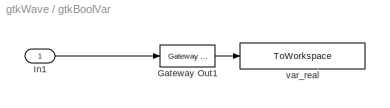
BLOCK [SubSystem] gtkBoolVar
  FunctionWithSeparateData = off
  MaskDescription = Capture a Boolean signal to view in gtkWave.
  MaskDisplay = disp('gtkBool')
  MaskHideContents = off
  MaskIconFrame = on
  MaskIconOpaque = on
  MaskIconRotate = none
  MaskIconUnits = autoscale
  MaskInitialization = gtkBool_init
  MaskSelfModifiable = on
  MinAlgLoopOccurrences = off
  Opaque = off
  Ports = [1]
  PropExecContextOutsideSubsystem = off
  RTWSystemCode = Auto
  RequestExecContextInheritance = off
BLOCK [Reference] gtkBoolVar/Gateway Out1  REF=xbsIndex_r4/Gateway Out
  LOCs = {}
  Ports = [1, 1]
  SourceBlock = xbsIndex_r4/Gateway Out
  SourceType = Xilinx Gateway Out Block
  block_type = gatewayout
  block_version = 10.1.2
  has_advanced_control = 0
  hdl_port = off
  infoedit = Gateway out block.  Converts Xilinx fixed point inputs into ouputs of type Simulink integer, double, or fixed point.<P><P>Hardware notes:  In hardware these blocks become top level output ports or are discarded, depending on how they are configured.  <repeated x3 — deduplicated; at blocks: Gateway Out1, Gateway Out2>
  locs_specified = off
  sg_icon_stat = 55,22,1,1,white,grey,0,b3a044a9,right
  sg_mask_display = fprintf('','COMMENT: begin icon graphics');\npatch([0 55 55 0 ],[0 0 22 22 ],[0.88 0.88 0.88]);\npatch([22 18 23 18 22 28 30 32 38 33 28 25 31 25 28 33 38 32 30 28 22 ],[2 6 11 16 20 20 18 20 20 15 20 17 11 5 2 7 2 2 4 2 2 ],[0.98 0.96 0.92]);\nplot([0 55 55 0 0 ],[0 0 22 22 0 ]);\nfprintf('','COMMENT: end icon graphics');\nfprintf('','COMMENT: begin icon text');\ncolor('black');port_label('input'...<+128ch>  <repeated x3 — deduplicated; at blocks: Gateway Out1, Gateway Out2>
  sggui_pos = -1,-1,-1,-1
  timing_constraint = None
  xl_area = [0, 0, 0, 0, 0, 0, 0]
  xl_use_area = off
BLOCK [Inport] gtkBoolVar/In1
  IconDisplay = Port number
  OutDataType = sfix(16)
  OutScaling = 2^0
BLOCK [ToWorkspace] gtkBoolVar/var_real
  MaxDataPoints = inf
  SampleTime = -1
  SaveFormat = Structure With Time
  VariableName = gtk_gtkWave__gtkBoolVar_bool
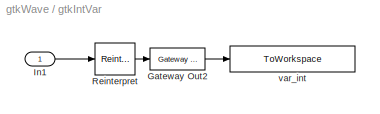
BLOCK [SubSystem] gtkIntVar
  FunctionWithSeparateData = off
  MaskDescription = Capture an Integer signal to view in gtkWave.\ngtkWave does not support fixed point variables, so all integers will appear with binary point at 0.\nThe input signal to this block should be less than 50 bits wide, as it is represented in Matlab as a double.
  MaskDisplay = disp(['gtkFix',num2str(width)])
  MaskEnableString = on
  MaskHideContents = off
  MaskIconFrame = on
  MaskIconOpaque = on
  MaskIconRotate = none
  MaskIconUnits = autoscale
  MaskInitialization = gtkFix_init
  MaskPromptString = Bit Width
  MaskSelfModifiable = on
  MaskStyleString = edit
  MaskToolTipString = on
  MaskTunableValueString = on
  MaskValueString = 32
  MaskVariables = width=@1;
  MaskVisibilityString = on
  MinAlgLoopOccurrences = off
  Opaque = off
  Ports = [1]
  PropExecContextOutsideSubsystem = off
  RTWSystemCode = Auto
  RequestExecContextInheritance = off
BLOCK [Reference] gtkIntVar/Gateway Out2  REF=xbsIndex_r4/Gateway Out
  LOCs = {}
  Ports = [1, 1]
  SourceBlock = xbsIndex_r4/Gateway Out
  SourceType = Xilinx Gateway Out Block
  block_type = gatewayout
  block_version = 10.1.2
  has_advanced_control = 0
  hdl_port = off
  locs_specified = off
  sg_icon_stat = 55,22,1,1,white,grey,0,b3a044a9,right
  sggui_pos = -1,-1,-1,-1
  timing_constraint = None
  xl_area = [0, 0, 0, 0, 0, 0, 0]
  xl_use_area = off
BLOCK [Inport] gtkIntVar/In1
  IconDisplay = Port number
  OutDataType = sfix(16)
  OutScaling = 2^0
BLOCK [Reference] gtkIntVar/Reinterpret  REF=xbsIndex_r4/Reinterpret
  Ports = [1, 1]
  SourceBlock = xbsIndex_r4/Reinterpret
  SourceType = Xilinx Type Reinterpreter Block
  arith_type = Unsigned
  bin_pt = 0
  block_type = reinterpret
  block_version = 10.1.2
  force_arith_type = on
  force_bin_pt = on
  has_advanced_control = 0
  infoedit = Changes signal type without altering the binary representation.   You can changed the signal between signed and unsigned, and relocate the binary point.<P><P>Hardware notes: In hardware this block costs nothing.<P><P>Example:  Suppose the input is 6 bits wide, signed, with 2 fractional bits, and the output is forced to unsigned with 0 fractional bits.  Then an input of -2.0 (1110.00 in binary 2's ...<+55ch>
  sg_icon_stat = 40,32,1,1,white,blue,0,8982c1db,right
  sg_mask_display = fprintf('','COMMENT: begin icon graphics');\npatch([0 40 40 0 ],[0 0 32 32 ],[0.77 0.82 0.91]);\npatch([11 6 13 6 11 19 21 23 32 25 18 13 20 13 18 25 32 23 21 19 11 ],[3 8 15 22 27 27 25 27 27 20 27 22 15 8 3 10 3 3 5 3 3 ],[0.98 0.96 0.92]);\nplot([0 40 40 0 0 ],[0 0 32 32 0 ]);\nfprintf('','COMMENT: end icon graphics');\nfprintf('','COMMENT: begin icon text');\ncolor('black');disp('reinterpret')...<+42ch>
  sggui_pos = -1,-1,-1,-1
BLOCK [ToWorkspace] gtkIntVar/var_int
  MaxDataPoints = inf
  SampleTime = -1
  SaveFormat = Structure With Time
  VariableName = gtk_gtkWave__gtkIntVar_int32
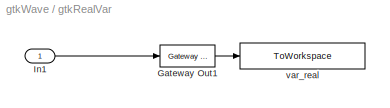
BLOCK [SubSystem] gtkRealVar
  FunctionWithSeparateData = off
  MaskDescription = Capture a Real variable to view in gtkWave.\nInput is a Xilinx Fix interpreted as a real number.
  MaskDisplay = disp('gtkReal')
  MaskHideContents = off
  MaskIconFrame = on
  MaskIconOpaque = on
  MaskIconRotate = none
  MaskIconUnits = autoscale
  MaskInitialization = gtkReal_init
  MaskSelfModifiable = on
  MinAlgLoopOccurrences = off
  Opaque = off
  Ports = [1]
  PropExecContextOutsideSubsystem = off
  RTWSystemCode = Auto
  RequestExecContextInheritance = off
BLOCK [Reference] gtkRealVar/Gateway Out1  REF=xbsIndex_r4/Gateway Out
  LOCs = {}
  Ports = [1, 1]
  SourceBlock = xbsIndex_r4/Gateway Out
  SourceType = Xilinx Gateway Out Block
  block_type = gatewayout
  block_version = 10.1.2
  has_advanced_control = 0
  hdl_port = off
  locs_specified = off
  sg_icon_stat = 55,22,1,1,white,grey,0,b3a044a9,right
  sggui_pos = -1,-1,-1,-1
  timing_constraint = None
  xl_area = [0, 0, 0, 0, 0, 0, 0]
  xl_use_area = off
BLOCK [Inport] gtkRealVar/In1
  IconDisplay = Port number
  OutDataType = sfix(16)
  OutScaling = 2^0
BLOCK [ToWorkspace] gtkRealVar/var_real
  MaxDataPoints = inf
  SampleTime = -1
  SaveFormat = Structure With Time
  VariableName = gtk_gtkWave__gtkRealVar_real
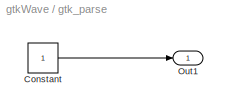
BLOCK [SubSystem] gtk_parse
  FunctionWithSeparateData = off
  MaskDescription = asdf
  MaskDisplay = fprintf('Double Click\\nTo make and\\nView VCD')
  MaskEnableString = on
  MaskHideContents = off
  MaskIconFrame = on
  MaskIconOpaque = on
  MaskIconRotate = none
  MaskIconUnits = autoscale
  MaskPromptString = dummy
  MaskStyleString = edit
  MaskToolTipString = on
  MaskTunableValueString = on
  MaskType = gtk_parse
  MaskValueString = 0
  MaskVariables = dummy=@1;
  MaskVisibilityString = on
  MinAlgLoopOccurrences = off
  Opaque = off
  OpenFcn = gtk_parse()
  Ports = [0, 1]
  PropExecContextOutsideSubsystem = off
  RTWSystemCode = Auto
  RequestExecContextInheritance = off
  StartFcn = gtkStartFcn()
BLOCK [Constant] gtk_parse/Constant
  OutDataType = sfix(16)
  OutScaling = 2^0
BLOCK [Outport] gtk_parse/Out1
  IconDisplay = Port number
  OutDataType = sfix(16)
  OutScaling = 2^0
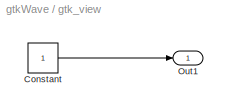
BLOCK [SubSystem] gtk_view
  FunctionWithSeparateData = off
  MaskDescription = asdf
  MaskDisplay = disp('View VCD')
  MaskHideContents = off
  MaskIconFrame = on
  MaskIconOpaque = on
  MaskIconRotate = none
  MaskIconUnits = autoscale
  MaskType = gtk_view
  MinAlgLoopOccurrences = off
  Opaque = off
  OpenFcn = gtk_view()
  Ports = [0, 1]
  PropExecContextOutsideSubsystem = off
  RTWSystemCode = Auto
  RequestExecContextInheritance = off
BLOCK [Constant] gtk_view/Constant
  OutDataType = sfix(16)
  OutScaling = 2^0
BLOCK [Outport] gtk_view/Out1
  IconDisplay = Port number
  OutDataType = sfix(16)
  OutScaling = 2^0
ANNOTATION (root): gtkWave Capture Blockset\nGlenn Jones \n2008.03.19\n\nConnect the Bool, Int, or Real blocks to Xilinx Fix signals to capture \nthe simulation data. The signal will show up in gtkWave with the same\nname as the Bool, Int, or Real block. Thus the default Bool variable name\nwould be 'gtkBoolVar'.\nDouble clicking the 'gtk_parse' block will parse the captured data \nand create a VCD file and open it ...<+650ch>
LINE gtkBoolVar/Gateway Out1:1 -> gtkBoolVar/var_real:1
LINE gtkBoolVar/In1:1 -> gtkBoolVar/Gateway Out1:1
LINE gtkIntVar/Gateway Out2:1 -> gtkIntVar/var_int:1
LINE gtkIntVar/In1:1 -> gtkIntVar/Reinterpret:1
LINE gtkIntVar/Reinterpret:1 -> gtkIntVar/Gateway Out2:1
LINE gtkRealVar/Gateway Out1:1 -> gtkRealVar/var_real:1
LINE gtkRealVar/In1:1 -> gtkRealVar/Gateway Out1:1
LINE gtk_parse/Constant:1 -> gtk_parse/Out1:1
LINE gtk_view/Constant:1 -> gtk_view/Out1:1
